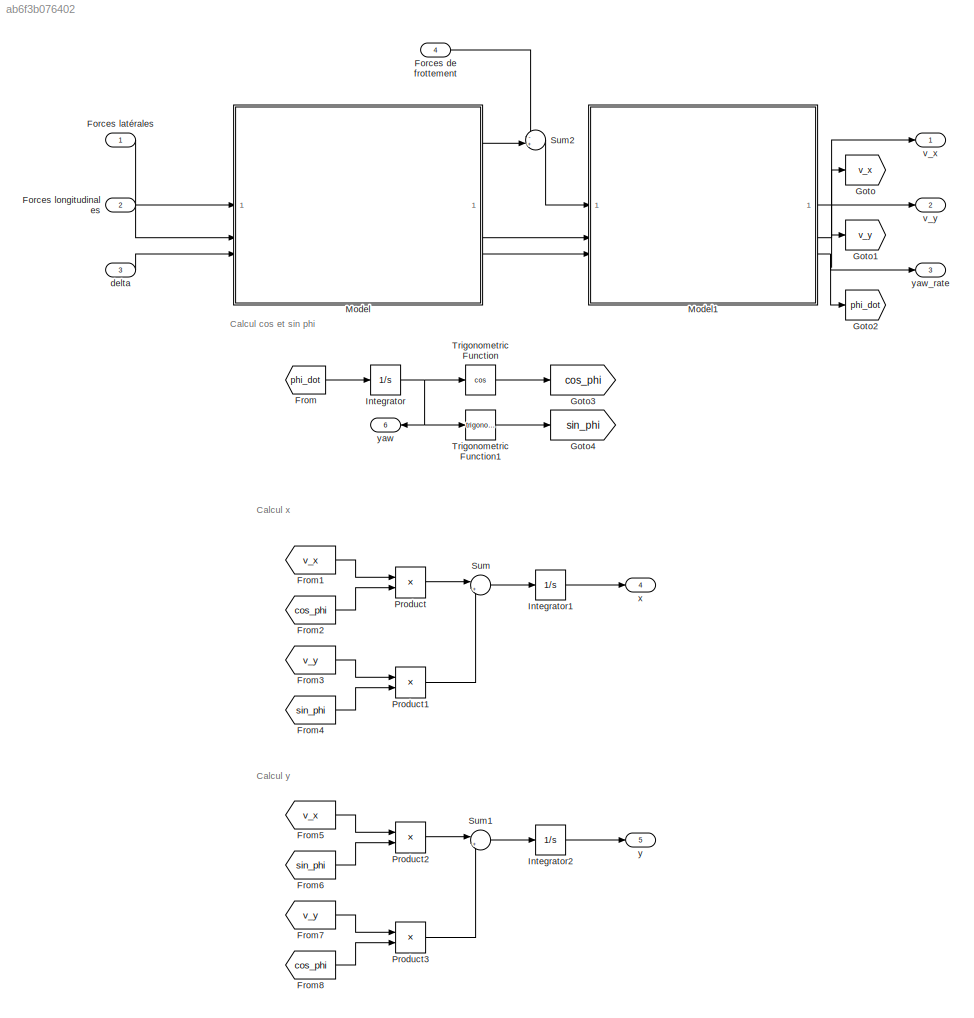
MODEL slx_ab6f3b076402
KIND model
CONFIG AbsTol = auto
CONFIG EnableMultiTasking = off
CONFIG FixedStep = Ts
CONFIG MaxStep = auto
CONFIG MinStep = auto
CONFIG RelTol = 1e-3
CONFIG SampleTimeConstraint = Unconstrained
CONFIG SolverName = FixedStepAuto
CONFIG StartTime = 0.0
CONFIG StopTime = 10.0
BLOCK [Inport] Forces de frottement
  Port = 4
BLOCK [Inport] Forces latérales
BLOCK [Inport] Forces longitudinales
  Port = 2
BLOCK [From] From
  GotoTag = phi_dot
BLOCK [From] From1
  GotoTag = v_x
BLOCK [From] From2
  GotoTag = cos_phi
BLOCK [From] From3
  GotoTag = v_y
BLOCK [From] From4
  GotoTag = sin_phi
BLOCK [From] From5
  GotoTag = v_x
BLOCK [From] From6
  GotoTag = sin_phi
BLOCK [From] From7
  GotoTag = v_y
BLOCK [From] From8
  GotoTag = cos_phi
BLOCK [Goto] Goto
  GotoTag = v_x
BLOCK [Goto] Goto1
  GotoTag = v_y
BLOCK [Goto] Goto2
  GotoTag = phi_dot
BLOCK [Goto] Goto3
  GotoTag = cos_phi
BLOCK [Goto] Goto4
  GotoTag = sin_phi
BLOCK [Integrator] Integrator
BLOCK [Integrator] Integrator1
BLOCK [Integrator] Integrator2
BLOCK [ModelReference] Model
  ModelNameDialog = calcul_alpha_beta_gamma_v2.slx
  ModelReferenceVersion = 1.5
BLOCK [ModelReference] Model1
  ModelNameDialog = calcul_vitesse_yawrate.slx
  ModelReferenceVersion = 1.2
BLOCK [Product] Product
BLOCK [Product] Product1
BLOCK [Product] Product2
BLOCK [Product] Product3
BLOCK [Sum] Sum
  Inputs = |+-
BLOCK [Sum] Sum1
  Inputs = |++
BLOCK [Sum] Sum2
  Inputs = -+|
BLOCK [Trigonometry] Trigonometric Function
  Operator = cos
BLOCK [Trigonometry] Trigonometric Function1
BLOCK [Inport] delta
  Port = 3
BLOCK [Outport] v_x
BLOCK [Outport] v_y
  Port = 2
BLOCK [Outport] x
  Port = 4
BLOCK [Outport] y
  Port = 5
BLOCK [Outport] yaw
  NameLocation = top
  Port = 6
BLOCK [Outport] yaw_rate
  Port = 3
ANNOTATION (root): Calcul cos et sin phi
ANNOTATION (root): Calcul x
ANNOTATION (root): Calcul y
LINE Forces de frottement:1 -> Sum2:1
LINE Forces latérales:1 -> Model:1
LINE Forces longitudinales:1 -> Model:2
LINE From1:1 -> Product:1
LINE From2:1 -> Product:2
LINE From3:1 -> Product1:1
LINE From4:1 -> Product1:2
LINE From5:1 -> Product2:1
LINE From6:1 -> Product2:2
LINE From7:1 -> Product3:1
LINE From8:1 -> Product3:2
LINE From:1 -> Integrator:1
LINE Integrator1:1 -> x:1
LINE Integrator2:1 -> y:1
NET Integrator:1 -> Trigonometric Function1:1, Trigonometric Function:1, yaw:1
NET Model1:1 -> Goto:1, v_x:1
NET Model1:2 -> Goto1:1, v_y:1
NET Model1:3 -> Goto2:1, yaw_rate:1
LINE Model:1 -> Sum2:2
LINE Model:2 -> Model1:2
LINE Model:3 -> Model1:3
LINE Product1:1 -> Sum:2
LINE Product2:1 -> Sum1:1
LINE Product3:1 -> Sum1:2
LINE Product:1 -> Sum:1
LINE Sum1:1 -> Integrator2:1
LINE Sum2:1 -> Model1:1
LINE Sum:1 -> Integrator1:1
LINE Trigonometric Function1:1 -> Goto4:1
LINE Trigonometric Function:1 -> Goto3:1
LINE delta:1 -> Model:3
note: NET lines group one-source signal fan-out (src -> all destinations, sorted); 1:1 wires keep LINE
